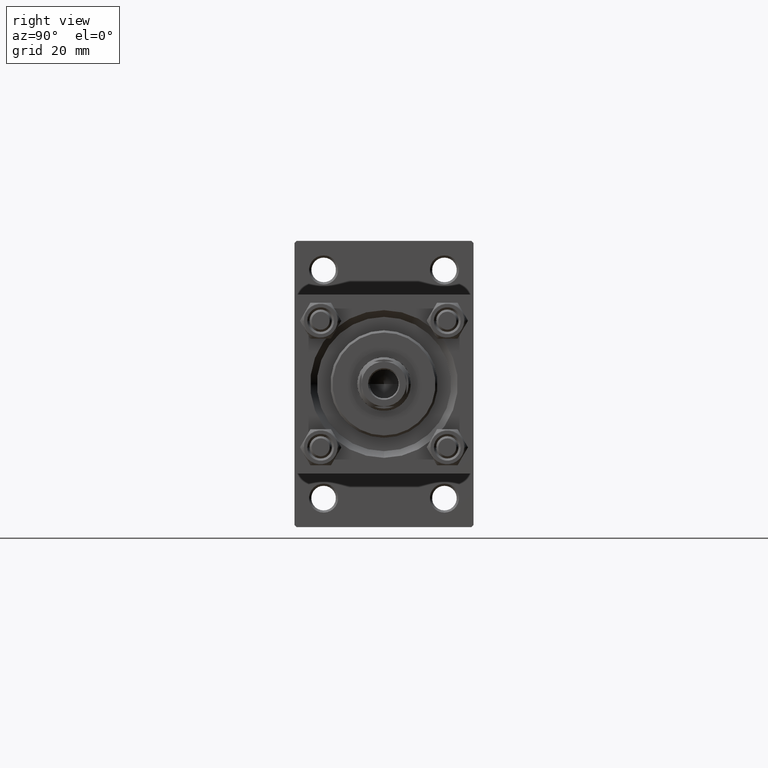
[diagram: clean part render]
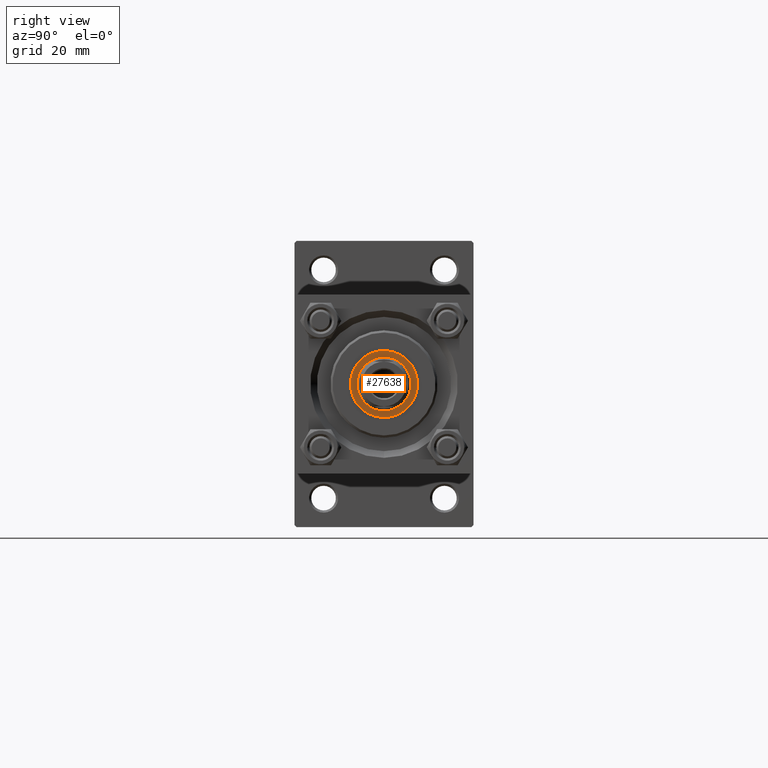
[diagram: same view with one face highlighted and labeled with its STEP entity id]
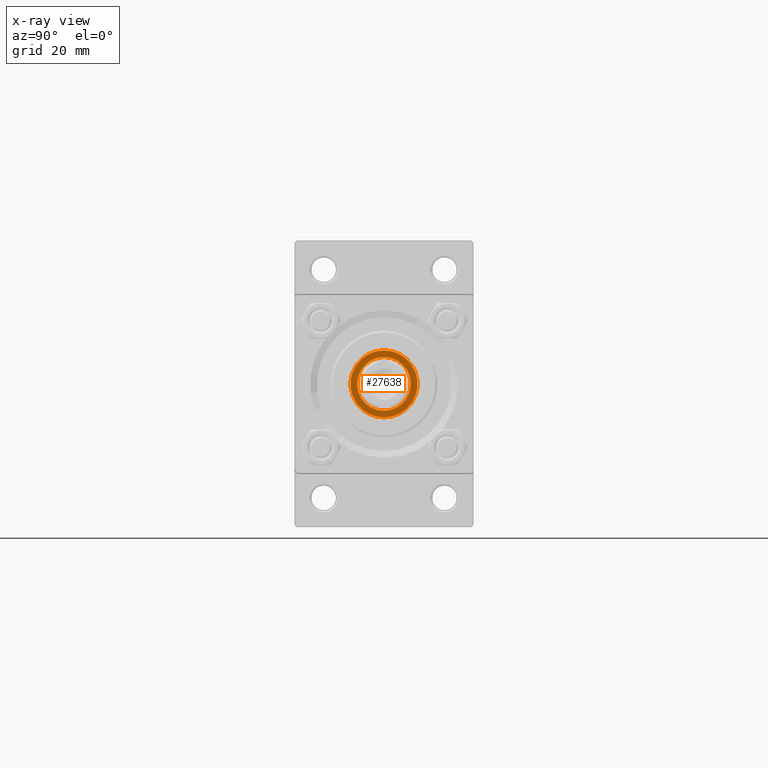
[diagram: x-ray of the same camera — body ghosted, the highlighted face saturated]
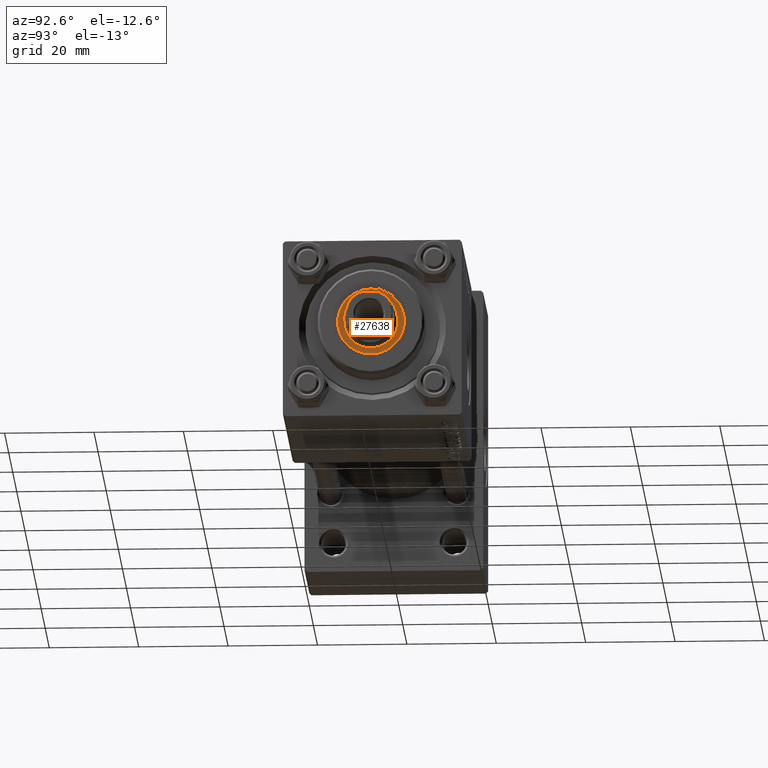
[diagram: same view with one face highlighted and labeled with its STEP entity id]
A machine part, right view. The second image highlights one B-rep face of the part: STEP entity #27638.
The next image is the same camera in x-ray: the body ghosted, the highlighted face saturated — about 0% of this face is hidden behind the body in this view.
A second angle (auxiliary view) of the same face is appended — the face is thin or edge-on in the first view.
In plain terms, the highlighted planar face has unit normal (1, 0, 0).
Its self-contained STEP definition (entity closure, byte-faithful):
#1498 = DIRECTION ( 'NONE',  ( 1.000000000000000000, 0.000000000000000000, -0.000000000000000000 ) ) ;
#1549 = VERTEX_POINT ( 'NONE', #26467 ) ;
#2009 = AXIS2_PLACEMENT_3D ( 'NONE', #42755, #12205, #8160 ) ;
#2668 = AXIS2_PLACEMENT_3D ( 'NONE', #42150, #7554, #2765 ) ;
#2765 = DIRECTION ( 'NONE',  ( 1.000000000000000000, 0.000000000000000000, 0.000000000000000000 ) ) ;
#2806 = CIRCLE ( 'NONE', #2009, 7.500000000000000888 ) ;
#6575 = CARTESIAN_POINT ( 'NONE',  ( 0.000000000000000000, 0.000000000000000000, 35.20000000000000284 ) ) ;
#7554 = DIRECTION ( 'NONE',  ( -0.000000000000000000, -0.000000000000000000, -1.000000000000000000 ) ) ;
#8160 = DIRECTION ( 'NONE',  ( 1.000000000000000000, 0.000000000000000000, 0.000000000000000000 ) ) ;
#8313 = FACE_BOUND ( 'NONE', #35858, .T. ) ;
#8345 = ORIENTED_EDGE ( 'NONE', *, *, #36890, .T. ) ;
#8730 = ORIENTED_EDGE ( 'NONE', *, *, #31912, .T. ) ;
#9500 = ORIENTED_EDGE ( 'NONE', *, *, #45411, .T. ) ;
#9711 = AXIS2_PLACEMENT_3D ( 'NONE', #39375, #20715, #1498 ) ;
#9983 = AXIS2_PLACEMENT_3D ( 'NONE', #6575, #22510, #22003 ) ;
#12205 = DIRECTION ( 'NONE',  ( 0.000000000000000000, 0.000000000000000000, 1.000000000000000000 ) ) ;
#16109 = CARTESIAN_POINT ( 'NONE',  ( 0.000000000000000000, 0.000000000000000000, 35.20000000000000284 ) ) ;
#17351 = VERTEX_POINT ( 'NONE', #31837 ) ;
#20715 = DIRECTION ( 'NONE',  ( 0.000000000000000000, 0.000000000000000000, 1.000000000000000000 ) ) ;
#22003 = DIRECTION ( 'NONE',  ( 1.000000000000000000, 0.000000000000000000, 0.000000000000000000 ) ) ;
#22510 = DIRECTION ( 'NONE',  ( -0.000000000000000000, -0.000000000000000000, -1.000000000000000000 ) ) ;
#23742 = PLANE ( 'NONE',  #9711 ) ;
#25874 = CIRCLE ( 'NONE', #33146, 7.500000000000000888 ) ;
#26467 = CARTESIAN_POINT ( 'NONE',  ( 7.500000000000000888, 0.000000000000000000, 35.20000000000000284 ) ) ;
#27638 = ADVANCED_FACE ( 'NONE', ( #42911, #8313 ), #23742, .T. ) ;
#30583 = VERTEX_POINT ( 'NONE', #42960 ) ;
#30773 = DIRECTION ( 'NONE',  ( 1.000000000000000000, 0.000000000000000000, 0.000000000000000000 ) ) ;
#31837 = CARTESIAN_POINT ( 'NONE',  ( -6.000000000000000888, 7.347880794884119736E-16, 35.20000000000000284 ) ) ;
#31912 = EDGE_CURVE ( 'NONE', #1549, #42107, #25874, .T. ) ;
#32075 = ORIENTED_EDGE ( 'NONE', *, *, #39500, .T. ) ;
#33146 = AXIS2_PLACEMENT_3D ( 'NONE', #16109, #38826, #30773 ) ;
#35858 = EDGE_LOOP ( 'NONE', ( #32075, #8345 ) ) ;
#36890 = EDGE_CURVE ( 'NONE', #17351, #30583, #45404, .T. ) ;
#38826 = DIRECTION ( 'NONE',  ( 0.000000000000000000, 0.000000000000000000, 1.000000000000000000 ) ) ;
#39375 = CARTESIAN_POINT ( 'NONE',  ( 0.000000000000000000, 0.000000000000000000, 35.20000000000000284 ) ) ;
#39500 = EDGE_CURVE ( 'NONE', #30583, #17351, #41450, .T. ) ;
#41450 = CIRCLE ( 'NONE', #9983, 6.000000000000000888 ) ;
#42107 = VERTEX_POINT ( 'NONE', #46782 ) ;
#42150 = CARTESIAN_POINT ( 'NONE',  ( 0.000000000000000000, 0.000000000000000000, 35.20000000000000284 ) ) ;
#42755 = CARTESIAN_POINT ( 'NONE',  ( 0.000000000000000000, 0.000000000000000000, 35.20000000000000284 ) ) ;
#42911 = FACE_OUTER_BOUND ( 'NONE', #46697, .T. ) ;
#42960 = CARTESIAN_POINT ( 'NONE',  ( 6.000000000000000888, 0.000000000000000000, 35.20000000000000284 ) ) ;
#45404 = CIRCLE ( 'NONE', #2668, 6.000000000000000888 ) ;
#45411 = EDGE_CURVE ( 'NONE', #42107, #1549, #2806, .T. ) ;
#46697 = EDGE_LOOP ( 'NONE', ( #8730, #9500 ) ) ;
#46782 = CARTESIAN_POINT ( 'NONE',  ( -7.500000000000000888, 9.184850993605149917E-16, 35.20000000000000284 ) ) ;